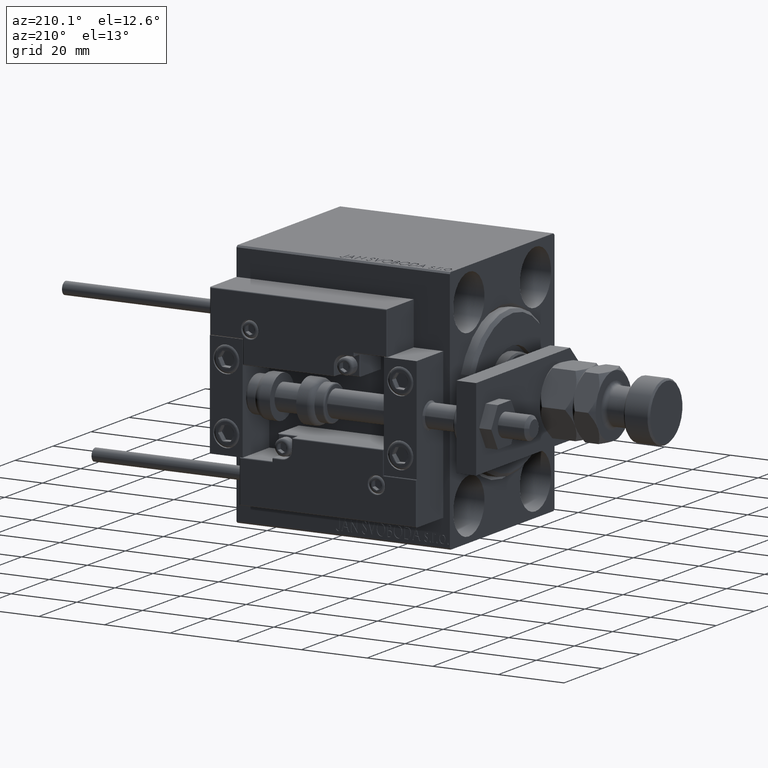
[diagram: clean part render]
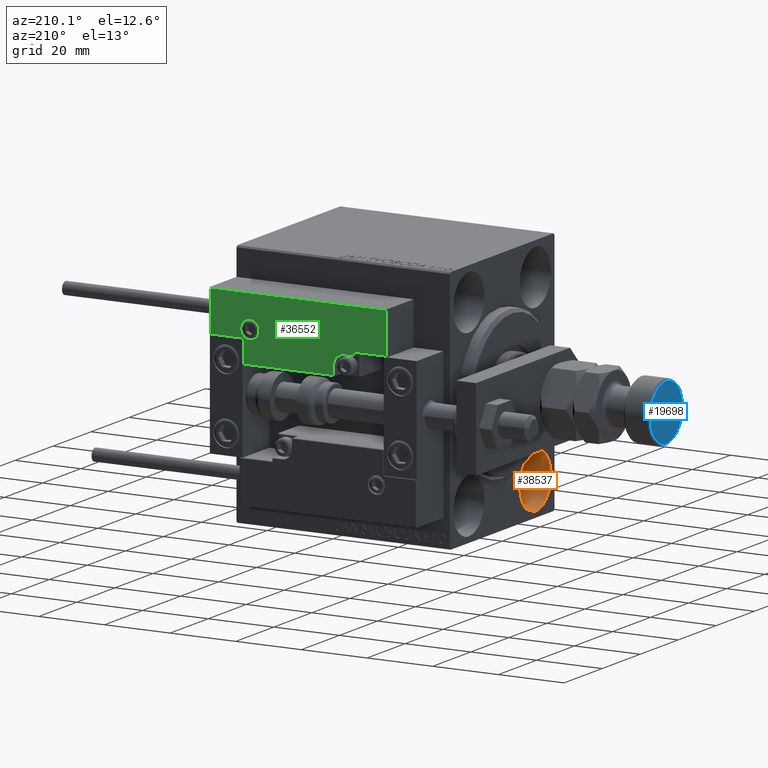
[diagram: same view with three faces highlighted in distinct colors, each labeled with its STEP entity id]
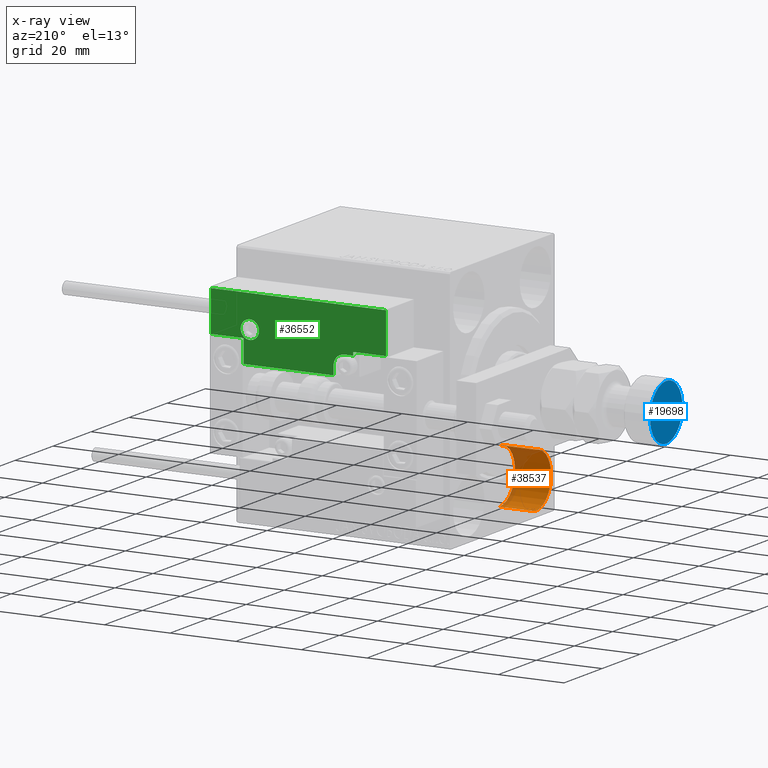
[diagram: x-ray of the same camera — body ghosted, the three highlighted faces saturated]
A machine part, auxiliary view with three faces highlighted in distinct colors.
The next image is the same camera in x-ray (body ghosted, the three faces saturated) — at least one of them is partly hidden behind the body in this view.
Their STEP definitions:

[orange] entity #38537 — the highlighted cylindrical surface (edge-blend (fillet) strip) has radius 8.25 mm, axis along (-1, -0, -0).
#81 = VERTEX_POINT ( 'NONE', #50872 ) ;
#1521 = AXIS2_PLACEMENT_3D ( 'NONE', #47546, #42631, #14994 ) ;
#1886 = DIRECTION ( 'NONE',  ( -1.000000000000000000, -0.000000000000000000, -0.000000000000000000 ) ) ;
#4493 = CARTESIAN_POINT ( 'NONE',  ( 11.00000000000000000, -17.50000000000000355, -35.75000000000000711 ) ) ;
#6479 = AXIS2_PLACEMENT_3D ( 'NONE', #22425, #42223, #22688 ) ;
#7444 = DIRECTION ( 'NONE',  ( -1.000000000000000000, -0.000000000000000000, -0.000000000000000000 ) ) ;
#14186 = EDGE_CURVE ( 'NONE', #48801, #81, #19826, .T. ) ;
#14882 = EDGE_CURVE ( 'NONE', #37022, #24561, #38141, .T. ) ;
#14994 = DIRECTION ( 'NONE',  ( 0.000000000000000000, 0.000000000000000000, 1.000000000000000000 ) ) ;
#17491 = AXIS2_PLACEMENT_3D ( 'NONE', #42169, #35112, #34596 ) ;
#17523 = CARTESIAN_POINT ( 'NONE',  ( 11.00000000000000000, -17.50000000000000355, -35.75000000000000711 ) ) ;
#19826 = CIRCLE ( 'NONE', #6479, 8.250000000000000000 ) ;
#20923 = ORIENTED_EDGE ( 'NONE', *, *, #49371, .F. ) ;
#21554 = VECTOR ( 'NONE', #7444, 1000.000000000000000 ) ;
#21745 = CARTESIAN_POINT ( 'NONE',  ( 0.000000000000000000, -17.50000000000000355, -19.25000000000000355 ) ) ;
#22425 = CARTESIAN_POINT ( 'NONE',  ( 11.00000000000000000, -17.50000000000000355, -27.50000000000000355 ) ) ;
#22688 = DIRECTION ( 'NONE',  ( 0.000000000000000000, 0.000000000000000000, 1.000000000000000000 ) ) ;
#24561 = VERTEX_POINT ( 'NONE', #21745 ) ;
#24675 = ORIENTED_EDGE ( 'NONE', *, *, #14882, .T. ) ;
#25614 = LINE ( 'NONE', #4493, #27963 ) ;
#27395 = EDGE_LOOP ( 'NONE', ( #36169, #33546, #24675, #20923 ) ) ;
#27963 = VECTOR ( 'NONE', #1886, 1000.000000000000000 ) ;
#33546 = ORIENTED_EDGE ( 'NONE', *, *, #39985, .T. ) ;
#34596 = DIRECTION ( 'NONE',  ( 0.000000000000000000, 0.000000000000000000, 1.000000000000000000 ) ) ;
#35112 = DIRECTION ( 'NONE',  ( -1.000000000000000000, -0.000000000000000000, -0.000000000000000000 ) ) ;
#36169 = ORIENTED_EDGE ( 'NONE', *, *, #14186, .F. ) ;
#37022 = VERTEX_POINT ( 'NONE', #43983 ) ;
#38141 = CIRCLE ( 'NONE', #1521, 8.250000000000000000 ) ;
#38537 = ADVANCED_FACE ( 'NONE', ( #45838 ), #49998, .F. ) ;
#39985 = EDGE_CURVE ( 'NONE', #48801, #37022, #25614, .T. ) ;
#42169 = CARTESIAN_POINT ( 'NONE',  ( 11.00000000000000000, -17.50000000000000355, -27.50000000000000355 ) ) ;
#42223 = DIRECTION ( 'NONE',  ( -1.000000000000000000, 0.000000000000000000, 0.000000000000000000 ) ) ;
#42631 = DIRECTION ( 'NONE',  ( -1.000000000000000000, 0.000000000000000000, 0.000000000000000000 ) ) ;
#43171 = LINE ( 'NONE', #47579, #21554 ) ;
#43983 = CARTESIAN_POINT ( 'NONE',  ( 0.000000000000000000, -17.50000000000000355, -35.75000000000000711 ) ) ;
#45838 = FACE_OUTER_BOUND ( 'NONE', #27395, .T. ) ;
#47546 = CARTESIAN_POINT ( 'NONE',  ( 0.000000000000000000, -17.50000000000000355, -27.50000000000000355 ) ) ;
#47579 = CARTESIAN_POINT ( 'NONE',  ( 11.00000000000000000, -17.50000000000000355, -19.25000000000000355 ) ) ;
#48801 = VERTEX_POINT ( 'NONE', #17523 ) ;
#49371 = EDGE_CURVE ( 'NONE', #81, #24561, #43171, .T. ) ;
#49998 = CYLINDRICAL_SURFACE ( 'NONE', #17491, 8.250000000000000000 ) ;
#50872 = CARTESIAN_POINT ( 'NONE',  ( 11.00000000000000000, -17.50000000000000355, -19.25000000000000355 ) ) ;

[blue] entity #19698 — the highlighted planar face has unit normal (-1, 0, 0).
#9125 = ORIENTED_EDGE ( 'NONE', *, *, #20049, .T. ) ;
#12438 = AXIS2_PLACEMENT_3D ( 'NONE', #43250, #42997, #15609 ) ;
#13633 = DIRECTION ( 'NONE',  ( 1.000000000000000000, 0.000000000000000000, 0.000000000000000000 ) ) ;
#14133 = DIRECTION ( 'NONE',  ( 0.000000000000000000, 0.000000000000000000, 1.000000000000000000 ) ) ;
#14831 = VERTEX_POINT ( 'NONE', #30617 ) ;
#15609 = DIRECTION ( 'NONE',  ( 1.000000000000000000, 0.000000000000000000, 0.000000000000000000 ) ) ;
#18060 = PLANE ( 'NONE',  #50700 ) ;
#19698 = ADVANCED_FACE ( 'NONE', ( #41755 ), #18060, .T. ) ;
#20049 = EDGE_CURVE ( 'NONE', #14831, #40715, #51558, .T. ) ;
#22418 = EDGE_LOOP ( 'NONE', ( #9125, #34755 ) ) ;
#25992 = EDGE_CURVE ( 'NONE', #40715, #14831, #31734, .T. ) ;
#28234 = CARTESIAN_POINT ( 'NONE',  ( 8.499999999999992895, 1.071565949253933532E-15, 33.00000000000000000 ) ) ;
#30083 = AXIS2_PLACEMENT_3D ( 'NONE', #33169, #32642, #13633 ) ;
#30617 = CARTESIAN_POINT ( 'NONE',  ( -8.499999999999992895, 0.000000000000000000, 33.00000000000000000 ) ) ;
#31734 = CIRCLE ( 'NONE', #30083, 8.499999999999992895 ) ;
#32642 = DIRECTION ( 'NONE',  ( 0.000000000000000000, 0.000000000000000000, 1.000000000000000000 ) ) ;
#33169 = CARTESIAN_POINT ( 'NONE',  ( 0.000000000000000000, 0.000000000000000000, 33.00000000000000000 ) ) ;
#34755 = ORIENTED_EDGE ( 'NONE', *, *, #25992, .T. ) ;
#40715 = VERTEX_POINT ( 'NONE', #28234 ) ;
#41755 = FACE_OUTER_BOUND ( 'NONE', #22418, .T. ) ;
#42997 = DIRECTION ( 'NONE',  ( 0.000000000000000000, 0.000000000000000000, 1.000000000000000000 ) ) ;
#43250 = CARTESIAN_POINT ( 'NONE',  ( 0.000000000000000000, 0.000000000000000000, 33.00000000000000000 ) ) ;
#49587 = DIRECTION ( 'NONE',  ( 1.000000000000000000, 0.000000000000000000, -0.000000000000000000 ) ) ;
#49844 = CARTESIAN_POINT ( 'NONE',  ( 0.000000000000000000, 0.000000000000000000, 33.00000000000000000 ) ) ;
#50700 = AXIS2_PLACEMENT_3D ( 'NONE', #49844, #14133, #49587 ) ;
#51558 = CIRCLE ( 'NONE', #12438, 8.499999999999992895 ) ;

[green] entity #36552 — the highlighted planar face has unit normal (0, 1, -0).
#99 = VECTOR ( 'NONE', #41503, 1000.000000000000000 ) ;
#176 = DIRECTION ( 'NONE',  ( 0.000000000000000000, -1.000000000000000000, 0.000000000000000000 ) ) ;
#1254 = AXIS2_PLACEMENT_3D ( 'NONE', #42260, #25836, #50346 ) ;
#2212 = CARTESIAN_POINT ( 'NONE',  ( -17.59999999999994813, 9.800000000000004263, 14.00000000000000000 ) ) ;
#3786 = VECTOR ( 'NONE', #6869, 1000.000000000000000 ) ;
#3803 = LINE ( 'NONE', #50772, #5185 ) ;
#4074 = LINE ( 'NONE', #40054, #5614 ) ;
#4233 = CARTESIAN_POINT ( 'NONE',  ( 26.70000000000006324, 20.00000000000001776, 14.00000000000000000 ) ) ;
#4981 = VERTEX_POINT ( 'NONE', #23548 ) ;
#5185 = VECTOR ( 'NONE', #43719, 1000.000000000000000 ) ;
#5614 = VECTOR ( 'NONE', #176, 1000.000000000000000 ) ;
#6002 = ORIENTED_EDGE ( 'NONE', *, *, #40491, .T. ) ;
#6739 = VERTEX_POINT ( 'NONE', #34145 ) ;
#6840 = CARTESIAN_POINT ( 'NONE',  ( 11.00000000000000000, 0.3000000000000032085, 14.00000000000000000 ) ) ;
#6869 = DIRECTION ( 'NONE',  ( -1.000000000000000000, 6.424901762877063495E-17, -0.000000000000000000 ) ) ;
#7563 = DIRECTION ( 'NONE',  ( 1.000000000000000000, -1.734723475976796001E-16, 0.000000000000000000 ) ) ;
#7627 = ORIENTED_EDGE ( 'NONE', *, *, #30024, .T. ) ;
#7909 = LINE ( 'NONE', #4233, #14010 ) ;
#8236 = DIRECTION ( 'NONE',  ( -8.006416042969869188E-16, -1.000000000000000000, 0.000000000000000000 ) ) ;
#8834 = EDGE_CURVE ( 'NONE', #44800, #35535, #31599, .T. ) ;
#8966 = ORIENTED_EDGE ( 'NONE', *, *, #13160, .T. ) ;
#9424 = FACE_OUTER_BOUND ( 'NONE', #32478, .T. ) ;
#9897 = VECTOR ( 'NONE', #14932, 1000.000000000000000 ) ;
#11250 = CIRCLE ( 'NONE', #25369, 2.800000000000000266 ) ;
#11768 = VECTOR ( 'NONE', #7563, 1000.000000000000000 ) ;
#12326 = ORIENTED_EDGE ( 'NONE', *, *, #18109, .T. ) ;
#12597 = DIRECTION ( 'NONE',  ( 0.000000000000000000, 1.000000000000000000, -0.000000000000000000 ) ) ;
#13160 = EDGE_CURVE ( 'NONE', #35165, #4981, #4074, .T. ) ;
#13298 = VERTEX_POINT ( 'NONE', #48924 ) ;
#14010 = VECTOR ( 'NONE', #12597, 1000.000000000000000 ) ;
#14181 = EDGE_LOOP ( 'NONE', ( #23989, #7627 ) ) ;
#14645 = ORIENTED_EDGE ( 'NONE', *, *, #25040, .T. ) ;
#14654 = CARTESIAN_POINT ( 'NONE',  ( 16.69999999999999929, 7.000000000000009770, 14.00000000000000000 ) ) ;
#14932 = DIRECTION ( 'NONE',  ( 1.000000000000000000, -0.000000000000000000, 0.000000000000000000 ) ) ;
#15338 = CIRCLE ( 'NONE', #28625, 3.299999999999997158 ) ;
#15872 = CARTESIAN_POINT ( 'NONE',  ( 13.99999999999999822, 6.300000000000001599, 14.00000000000000000 ) ) ;
#17513 = CARTESIAN_POINT ( 'NONE',  ( -26.69999999999993534, 19.70000000000002061, 14.00000000000000000 ) ) ;
#17722 = CARTESIAN_POINT ( 'NONE',  ( 26.70000000000006324, 7.300000000000007816, 14.00000000000000000 ) ) ;
#18109 = EDGE_CURVE ( 'NONE', #42524, #44800, #7909, .T. ) ;
#18212 = ORIENTED_EDGE ( 'NONE', *, *, #40432, .T. ) ;
#18420 = DIRECTION ( 'NONE',  ( 0.000000000000000000, -0.000000000000000000, -1.000000000000000000 ) ) ;
#19078 = EDGE_CURVE ( 'NONE', #4981, #36449, #23007, .T. ) ;
#20504 = CARTESIAN_POINT ( 'NONE',  ( -16.99999999999999289, 7.300000000000003375, 14.00000000000000000 ) ) ;
#21085 = VERTEX_POINT ( 'NONE', #15872 ) ;
#21691 = VERTEX_POINT ( 'NONE', #51217 ) ;
#22370 = ORIENTED_EDGE ( 'NONE', *, *, #19078, .T. ) ;
#23007 = LINE ( 'NONE', #6840, #9897 ) ;
#23085 = DIRECTION ( 'NONE',  ( 1.000000000000000000, 0.000000000000000000, 0.000000000000000000 ) ) ;
#23548 = CARTESIAN_POINT ( 'NONE',  ( -16.69999999999999218, 0.3000000000000032085, 14.00000000000000000 ) ) ;
#23634 = DIRECTION ( 'NONE',  ( 1.000000000000000000, -1.734723475976815230E-16, 0.000000000000000000 ) ) ;
#23683 = EDGE_CURVE ( 'NONE', #21085, #21691, #45089, .T. ) ;
#23924 = ORIENTED_EDGE ( 'NONE', *, *, #8834, .T. ) ;
#23989 = ORIENTED_EDGE ( 'NONE', *, *, #37094, .T. ) ;
#24288 = CARTESIAN_POINT ( 'NONE',  ( 16.69999999999999929, 7.300000000000009592, 14.00000000000000000 ) ) ;
#24919 = CARTESIAN_POINT ( 'NONE',  ( -14.79999999999994920, 9.800000000000004263, 14.00000000000000000 ) ) ;
#25040 = EDGE_CURVE ( 'NONE', #36505, #42524, #50611, .T. ) ;
#25369 = AXIS2_PLACEMENT_3D ( 'NONE', #24919, #28305, #40820 ) ;
#25640 = ORIENTED_EDGE ( 'NONE', *, *, #27565, .T. ) ;
#25836 = DIRECTION ( 'NONE',  ( -0.000000000000000000, 0.000000000000000000, 1.000000000000000000 ) ) ;
#26151 = EDGE_CURVE ( 'NONE', #21691, #36505, #33933, .T. ) ;
#27165 = DIRECTION ( 'NONE',  ( 0.000000000000000000, -0.000000000000000000, -1.000000000000000000 ) ) ;
#27484 = CARTESIAN_POINT ( 'NONE',  ( -26.69999999999994600, 7.300000000000005151, 14.00000000000000000 ) ) ;
#27528 = LINE ( 'NONE', #39516, #39686 ) ;
#27565 = EDGE_CURVE ( 'NONE', #36449, #13298, #3803, .T. ) ;
#28305 = DIRECTION ( 'NONE',  ( 0.000000000000000000, -0.000000000000000000, -1.000000000000000000 ) ) ;
#28625 = AXIS2_PLACEMENT_3D ( 'NONE', #31083, #27165, #43337 ) ;
#29151 = CARTESIAN_POINT ( 'NONE',  ( 17.00000000000000000, 6.300000000000003375, 14.00000000000000000 ) ) ;
#30024 = EDGE_CURVE ( 'NONE', #34046, #6739, #47717, .T. ) ;
#30518 = CARTESIAN_POINT ( 'NONE',  ( 27.00000000000006395, 7.300000000000007816, 14.00000000000000000 ) ) ;
#31083 = CARTESIAN_POINT ( 'NONE',  ( 13.99999999999999822, 3.000000000000002665, 14.00000000000000000 ) ) ;
#31599 = LINE ( 'NONE', #50411, #3786 ) ;
#32176 = VECTOR ( 'NONE', #23634, 1000.000000000000000 ) ;
#32478 = EDGE_LOOP ( 'NONE', ( #8966, #22370, #25640, #48751, #36009, #46400, #14645, #12326, #23924, #6002, #18212 ) ) ;
#33933 = LINE ( 'NONE', #14654, #99 ) ;
#34046 = VERTEX_POINT ( 'NONE', #2212 ) ;
#34145 = CARTESIAN_POINT ( 'NONE',  ( -11.99999999999994849, 9.800000000000004263, 14.00000000000000000 ) ) ;
#35165 = VERTEX_POINT ( 'NONE', #42320 ) ;
#35216 = EDGE_CURVE ( 'NONE', #13298, #21085, #15338, .T. ) ;
#35535 = VERTEX_POINT ( 'NONE', #17513 ) ;
#36009 = ORIENTED_EDGE ( 'NONE', *, *, #23683, .T. ) ;
#36020 = CARTESIAN_POINT ( 'NONE',  ( 10.69999999999999929, 0.3000000000000032085, 14.00000000000000000 ) ) ;
#36449 = VERTEX_POINT ( 'NONE', #36020 ) ;
#36505 = VERTEX_POINT ( 'NONE', #24288 ) ;
#36552 = ADVANCED_FACE ( 'NONE', ( #49823, #9424 ), #45411, .T. ) ;
#37094 = EDGE_CURVE ( 'NONE', #6739, #34046, #11250, .T. ) ;
#37387 = VERTEX_POINT ( 'NONE', #27484 ) ;
#37498 = DIRECTION ( 'NONE',  ( 1.000000000000000000, 5.782411586589357639E-16, -0.000000000000000000 ) ) ;
#39516 = CARTESIAN_POINT ( 'NONE',  ( -26.69999999999994600, 7.000000000000005329, 14.00000000000000000 ) ) ;
#39686 = VECTOR ( 'NONE', #8236, 1000.000000000000000 ) ;
#40054 = CARTESIAN_POINT ( 'NONE',  ( -16.69999999999999218, 3.252606517456513302E-15, 14.00000000000000000 ) ) ;
#40432 = EDGE_CURVE ( 'NONE', #37387, #35165, #44225, .T. ) ;
#40491 = EDGE_CURVE ( 'NONE', #35535, #37387, #27528, .T. ) ;
#40820 = DIRECTION ( 'NONE',  ( 1.000000000000000000, 0.000000000000000000, 0.000000000000000000 ) ) ;
#41503 = DIRECTION ( 'NONE',  ( 9.912705577010318647E-16, 1.000000000000000000, 0.000000000000000000 ) ) ;
#42260 = CARTESIAN_POINT ( 'NONE',  ( 0.000000000000000000, 0.000000000000000000, 14.00000000000000000 ) ) ;
#42320 = CARTESIAN_POINT ( 'NONE',  ( -16.69999999999999218, 7.300000000000003375, 14.00000000000000000 ) ) ;
#42524 = VERTEX_POINT ( 'NONE', #17722 ) ;
#42704 = CARTESIAN_POINT ( 'NONE',  ( 26.70000000000006324, 19.70000000000001705, 14.00000000000000000 ) ) ;
#43337 = DIRECTION ( 'NONE',  ( 1.000000000000000000, 0.000000000000000000, 0.000000000000000000 ) ) ;
#43684 = AXIS2_PLACEMENT_3D ( 'NONE', #46809, #18420, #23085 ) ;
#43719 = DIRECTION ( 'NONE',  ( -0.000000000000000000, 1.000000000000000000, -0.000000000000000000 ) ) ;
#44225 = LINE ( 'NONE', #20504, #32176 ) ;
#44800 = VERTEX_POINT ( 'NONE', #42704 ) ;
#44998 = VECTOR ( 'NONE', #37498, 1000.000000000000000 ) ;
#45089 = LINE ( 'NONE', #29151, #44998 ) ;
#45411 = PLANE ( 'NONE',  #1254 ) ;
#46400 = ORIENTED_EDGE ( 'NONE', *, *, #26151, .T. ) ;
#46809 = CARTESIAN_POINT ( 'NONE',  ( -14.79999999999994920, 9.800000000000004263, 14.00000000000000000 ) ) ;
#47717 = CIRCLE ( 'NONE', #43684, 2.800000000000000266 ) ;
#48751 = ORIENTED_EDGE ( 'NONE', *, *, #35216, .T. ) ;
#48924 = CARTESIAN_POINT ( 'NONE',  ( 10.69999999999999929, 3.000000000000003109, 14.00000000000000000 ) ) ;
#49823 = FACE_BOUND ( 'NONE', #14181, .T. ) ;
#50346 = DIRECTION ( 'NONE',  ( 1.000000000000000000, 0.000000000000000000, 0.000000000000000000 ) ) ;
#50411 = CARTESIAN_POINT ( 'NONE',  ( -26.99999999999993605, 19.70000000000002061, 14.00000000000000000 ) ) ;
#50611 = LINE ( 'NONE', #30518, #11768 ) ;
#50772 = CARTESIAN_POINT ( 'NONE',  ( 10.69999999999999929, 3.000000000000003109, 14.00000000000000000 ) ) ;
#51217 = CARTESIAN_POINT ( 'NONE',  ( 16.69999999999999929, 6.300000000000003375, 14.00000000000000000 ) ) ;